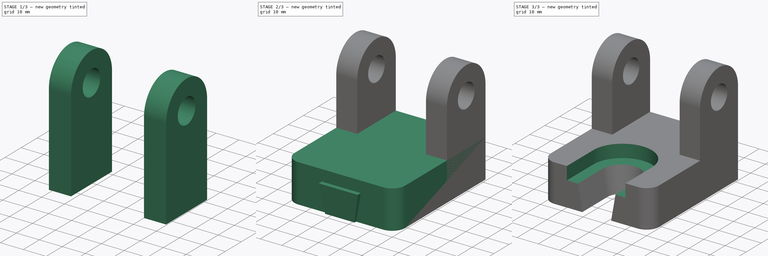
[diagram: build sequence overview — one tinted view per stage of 3, left to right]
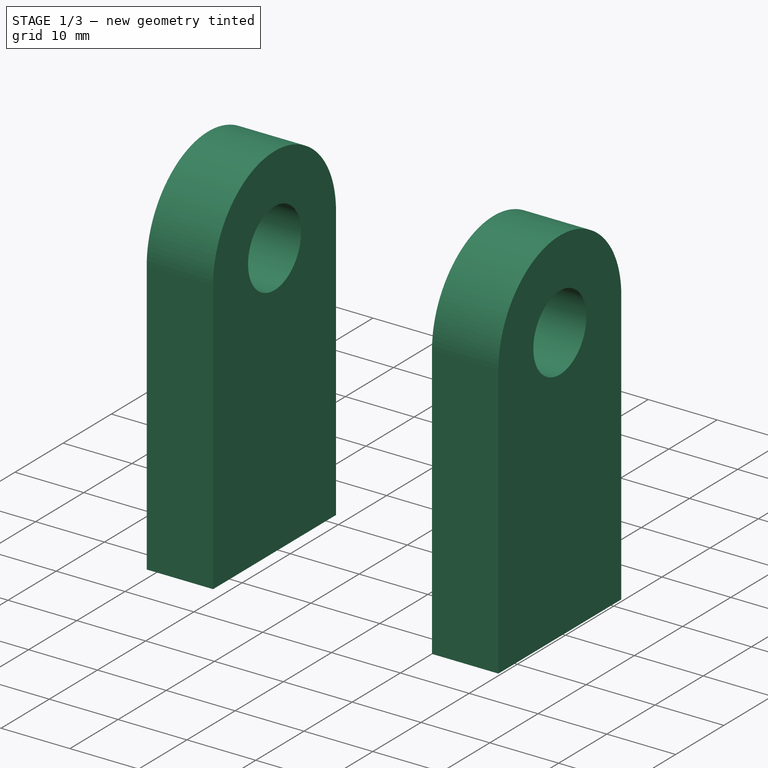
[diagram: stage 1 of 3 — iso view after this stage's code; geometry added in this stage tinted green]
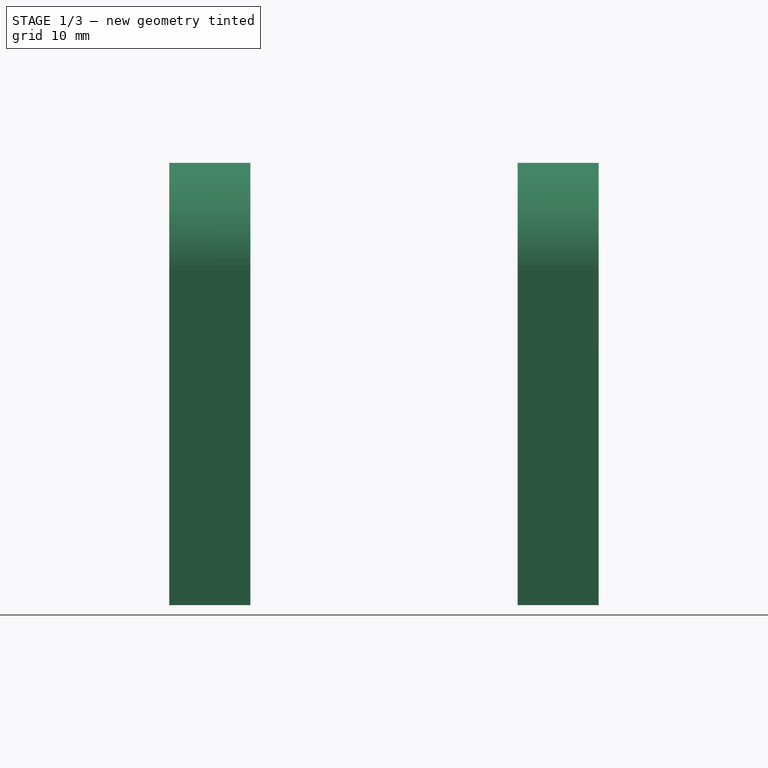
[diagram: stage 1 of 3 — front view after this stage's code; geometry added in this stage tinted green]
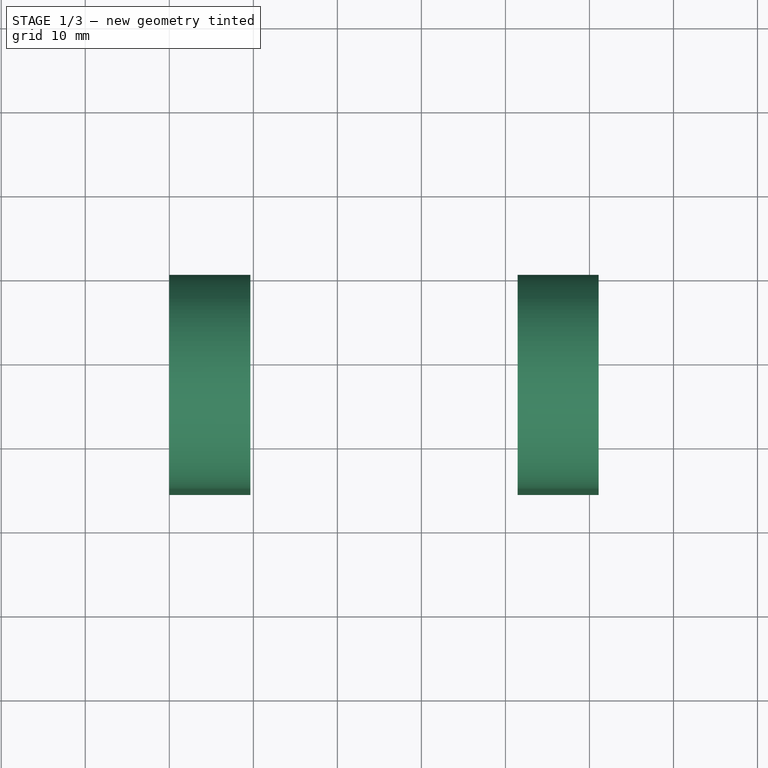
[diagram: stage 1 of 3 — top view after this stage's code; geometry added in this stage tinted green]
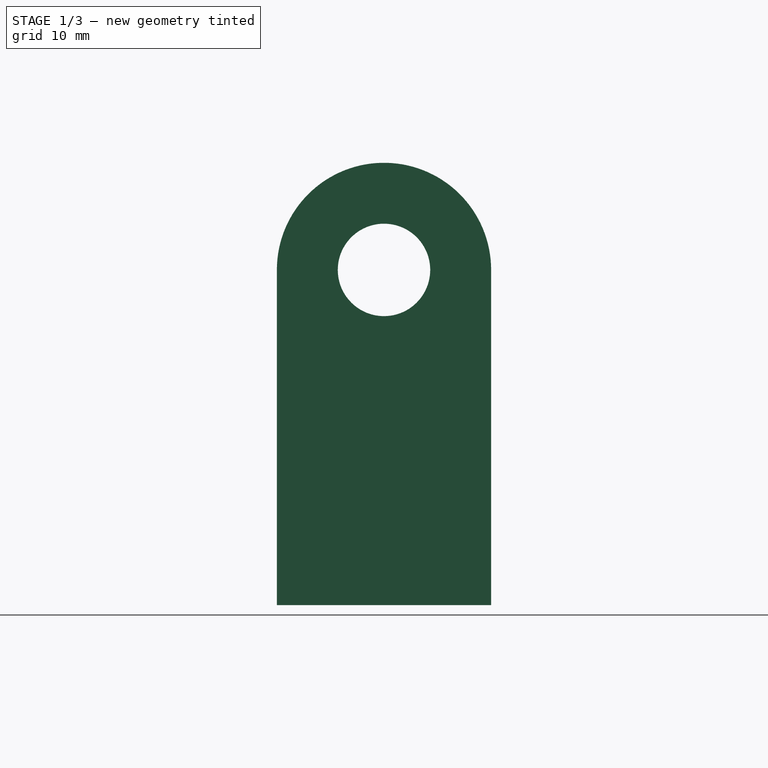
[diagram: stage 1 of 3 — right view after this stage's code; geometry added in this stage tinted green]
FCSTD DOCUMENT  (FreeCAD 0.16R6712 (Git))
Label: Pieza-4
License: All rights reserved
LicenseURL: http://en.wikipedia.org/wiki/All_rights_reserved
objects: Sketcher::SketchObject×6, PartDesign::Pad×3, Part::MultiFuse×2, PartDesign::Pocket×1, Part::Line×1, Part::Loft×1, Part::Cut×1
note: 19 computed .brp shape members not serialized (recipe doc carries the construction recipe); baked Part::Feature solids carry a one-line shape summary decoded from their .brp

FEATURE [Sketcher::SketchObject] Sketch004
  Placement = pos=(0,0,0) rot=(0.57735,0.57735,0.57735;2.0944rad)
  sketch-geometry (7):
    g0: LineSegment [constr] StartX=-25.5 StartY=39.9 StartZ=0 EndX=0 EndY=39.9 EndZ=0
    g1: LineSegment StartX=0 StartY=39.9 StartZ=0 EndX=0 EndY=0 EndZ=0
    g2: LineSegment StartX=0 StartY=0 StartZ=0 EndX=-25.5 EndY=0 EndZ=0
    g3: LineSegment StartX=-25.5 StartY=0 StartZ=0 EndX=-25.5 EndY=39.9 EndZ=0
    g4: ArcOfCircle CenterX=-12.75 CenterY=39.9 CenterZ=0 NormalX=0 NormalY=0 NormalZ=1 Radius=12.75 StartAngle=0 EndAngle=3.14159
    g5: LineSegment [constr] StartX=-12.75 StartY=39.9 StartZ=0 EndX=-12.75 EndY=52.65 EndZ=0
    g6: Circle CenterX=-12.75 CenterY=39.9 CenterZ=0 NormalX=0 NormalY=0 NormalZ=1 Radius=5.5
  constraints (21):
    c: Coincident(g0,g1)
    c: Coincident(g1,g2)
    c: Coincident(g2,g3)
    c: Horizontal(g0)
    c: Horizontal(g2)
    c: Vertical(g1)
    c: Vertical(g3)
    c: Coincident(g1,g-1)
    c: DistanceX(g2,g2) = 25.5
    c: Coincident(g4,g0)
    c: PointOnObject(g4,g0)
    c: Coincident(g4,g0)
    c: Coincident(g3,g0)
    c: Coincident(g0,g4)
    c: PointOnObject(g4,g0)
    c: Coincident(g5,g4)
    c: Vertical(g5)
    c: PointOnObject(g5,g4)
    c: DistanceY(g-1,g5) = 52.65
    c: Coincident(g6,g4)
    c: Radius(g6) = 5.5
FEATURE [Sketcher::SketchObject] Sketch005
  Placement = pos=(51.1,0,0) rot=(0.57735,0.57735,0.57735;2.0944rad)
  sketch-geometry (7):
    g0: LineSegment [constr] StartX=-25.5 StartY=39.9 StartZ=0 EndX=0 EndY=39.9 EndZ=0
    g1: LineSegment StartX=0 StartY=39.9 StartZ=0 EndX=0 EndY=0 EndZ=0
    g2: LineSegment StartX=0 StartY=0 StartZ=0 EndX=-25.5 EndY=0 EndZ=0
    g3: LineSegment StartX=-25.5 StartY=0 StartZ=0 EndX=-25.5 EndY=39.9 EndZ=0
    g4: ArcOfCircle CenterX=-12.75 CenterY=39.9 CenterZ=0 NormalX=0 NormalY=0 NormalZ=1 Radius=12.75 StartAngle=0 EndAngle=3.14159
    g5: LineSegment [constr] StartX=-12.75 StartY=39.9 StartZ=0 EndX=-12.75 EndY=52.65 EndZ=0
    g6: Circle CenterX=-12.75 CenterY=39.9 CenterZ=0 NormalX=0 NormalY=0 NormalZ=1 Radius=5.5
  constraints (21):
    c: Coincident(g0,g1)
    c: Coincident(g1,g2)
    c: Coincident(g2,g3)
    c: Horizontal(g0)
    c: Horizontal(g2)
    c: Vertical(g1)
    c: Vertical(g3)
    c: Coincident(g1,g-1)
    c: DistanceX(g2,g2) = 25.5
    c: Coincident(g4,g0)
    c: PointOnObject(g4,g0)
    c: Coincident(g4,g0)
    c: Coincident(g3,g0)
    c: Coincident(g0,g4)
    c: PointOnObject(g4,g0)
    c: Coincident(g5,g4)
    c: Vertical(g5)
    c: PointOnObject(g5,g4)
    c: DistanceY(g-1,g5) = 52.65
    c: Coincident(g6,g4)
    c: Radius(g6) = 5.5
FEATURE [PartDesign::Pad] Pad001  label="Oreja-iz"
  Length = 9.65
  Length2 = 100
  Placement = pos=(0,0,0) rot=(0.57735,0.57735,0.57735;2.0944rad)
  Sketch = -> Sketch004
  Type = 0
FEATURE [PartDesign::Pad] Pad002  label="Oreja-d"
  Length = 9.65
  Length2 = 100
  Placement = pos=(51.1,0,0) rot=(0.57735,0.57735,0.57735;2.0944rad)
  Reversed = true
  Sketch = -> Sketch005
  Type = 0
FEATURE [Part::MultiFuse] Fusion  label="Laterales"
  Shapes = -> [Pad002,Pad001]
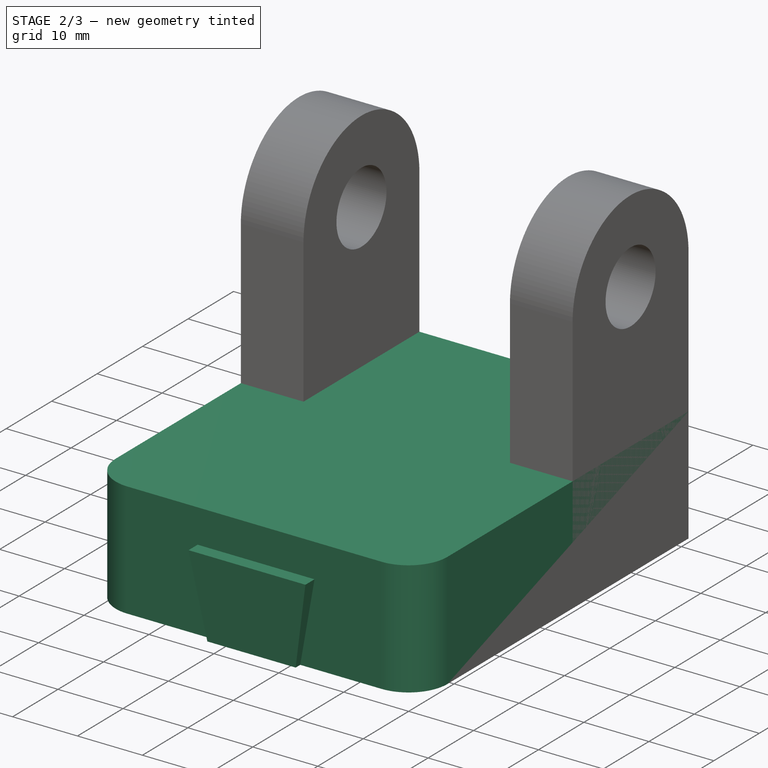
[diagram: stage 2 of 3 — iso view after this stage's code; geometry added in this stage tinted green]
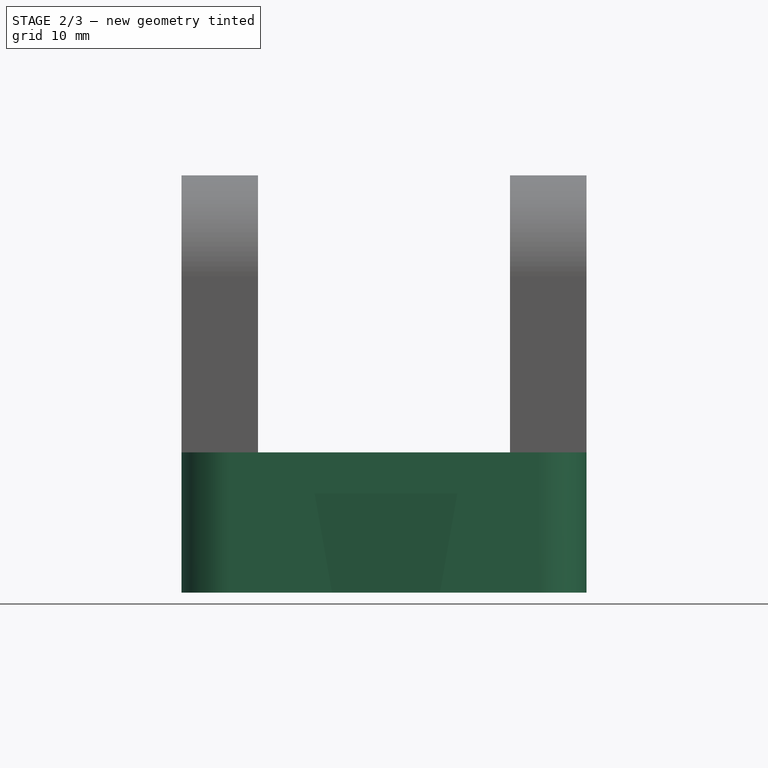
[diagram: stage 2 of 3 — front view after this stage's code; geometry added in this stage tinted green]
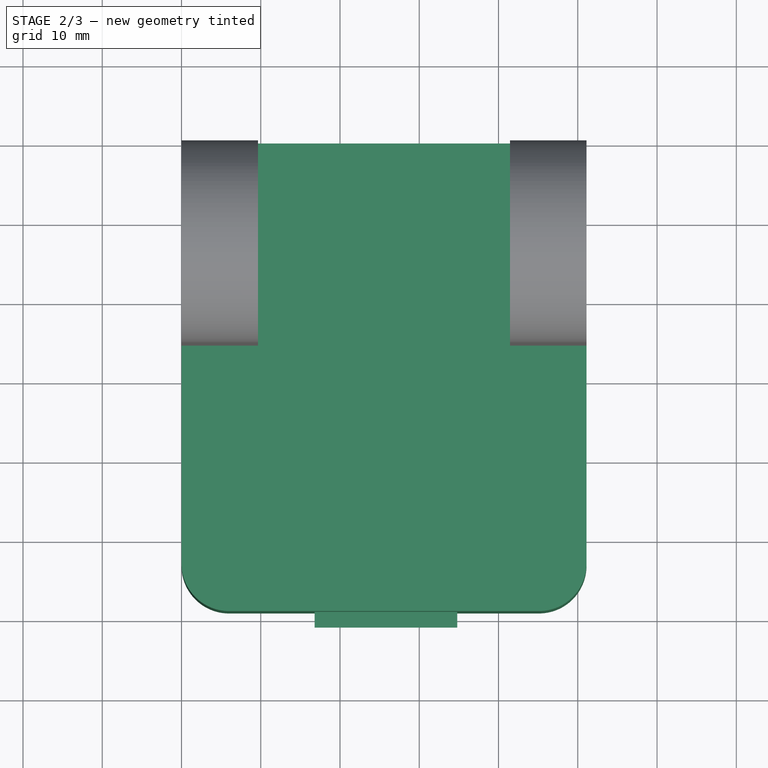
[diagram: stage 2 of 3 — top view after this stage's code; geometry added in this stage tinted green]
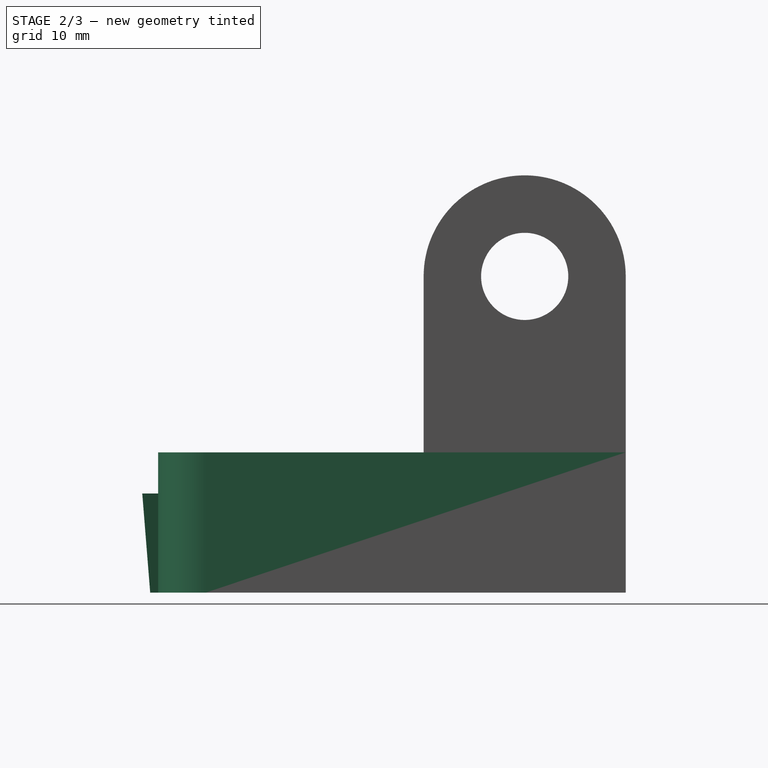
[diagram: stage 2 of 3 — right view after this stage's code; geometry added in this stage tinted green]
FEATURE [Sketcher::SketchObject] Sketch
  sketch-geometry (6):
    g0: LineSegment StartX=0 StartY=0 StartZ=0 EndX=51.1 EndY=0 EndZ=0
    g1: LineSegment StartX=51.1 StartY=0 StartZ=0 EndX=51.1 EndY=-53 EndZ=0
    g2: LineSegment StartX=0 StartY=-53 StartZ=0 EndX=0 EndY=0 EndZ=0
    g3: ArcOfCircle CenterX=6 CenterY=-53 CenterZ=0 NormalX=0 NormalY=0 NormalZ=1 Radius=6 StartAngle=3.14159 EndAngle=4.71239
    g4: ArcOfCircle CenterX=45.1 CenterY=-53 CenterZ=0 NormalX=0 NormalY=0 NormalZ=1 Radius=6 StartAngle=4.71239 EndAngle=6.28319
    g5: LineSegment StartX=45.1 StartY=-59 StartZ=0 EndX=6 EndY=-59 EndZ=0
  constraints (19):
    c: Coincident(g0,g-1)
    c: Coincident(g2,g3)
    c: Coincident(g3,g5)
    c: Vertical(g2)
    c: Equal(g3,g4)
    c: Horizontal(g5)
    c: DistanceY(g4,g0) = 59
    c: Coincident(g1,g4)
    c: Horizontal(g0)
    c: Coincident(g0,g2)
    c: Coincident(g0,g1)
    c: Radius(g4) = 6
    c: Equal(g1,g2)
    c: DistanceY(g4,g1) = 6
    c: Coincident(g5,g4)
    c: DistanceY(g3,g2) = 6
    c: DistanceX(g2,g1) = 51.1
    c: DistanceX(g4,g1) = 6
    c: DistanceX(g2,g3) = 6
FEATURE [PartDesign::Pad] Pad  label="Base-inicial"
  Length = 17.7
  Length2 = 100
  Sketch = -> Sketch
  Type = 0
FEATURE [Sketcher::SketchObject] Sketch002  label="Sketch-inferior"
  sketch-geometry (6):
    g0: LineSegment [constr] StartX=19 StartY=-42.2 StartZ=0 EndX=32.6 EndY=-42.2 EndZ=0
    g1: LineSegment StartX=32.6 StartY=-42.2 StartZ=0 EndX=32.6 EndY=-60 EndZ=0
    g2: LineSegment StartX=32.6 StartY=-60 StartZ=0 EndX=19 EndY=-60 EndZ=0
    g3: LineSegment StartX=19 StartY=-60 StartZ=0 EndX=19 EndY=-42.2 EndZ=0
    g4: ArcOfCircle CenterX=25.8 CenterY=-42.2 CenterZ=0 NormalX=0 NormalY=0 NormalZ=1 Radius=6.8 StartAngle=6.28318 EndAngle=9.42478
    g5: LineSegment [constr] StartX=25.8 StartY=-42.2 StartZ=0 EndX=25.8 EndY=-35.4 EndZ=0
  constraints (18):
    c: Coincident(g0,g1)
    c: Coincident(g1,g2)
    c: Coincident(g2,g3)
    c: Horizontal(g0)
    c: Horizontal(g2)
    c: Vertical(g1)
    c: Vertical(g3)
    c: DistanceX(g0,g0) = 13.6
    c: Coincident(g4,g0)
    c: Coincident(g4,g0)
    c: Coincident(g3,g0)
    c: Radius(g4) = 6.8
    c: Coincident(g5,g4)
    c: Vertical(g5)
    c: PointOnObject(g5,g4)
    c: DistanceY(g1,g5) = 24.6
    c: DistanceY(g2,g-1) = 60
    c: DistanceX(g-1,g4) = 25.8
FEATURE [Sketcher::SketchObject] Sketch003  label="Sketch-superior"
  Placement = pos=(0,0,12.5) rot=(0,0,1;0rad)
  sketch-geometry (6):
    g0: LineSegment [constr] StartX=16.8 StartY=-42.4 StartZ=0 EndX=34.8 EndY=-42.4 EndZ=0
    g1: LineSegment StartX=34.8 StartY=-42.4 StartZ=0 EndX=34.8 EndY=-61 EndZ=0
    g2: LineSegment StartX=34.8 StartY=-61 StartZ=0 EndX=16.8 EndY=-61 EndZ=0
    g3: LineSegment StartX=16.8 StartY=-61 StartZ=0 EndX=16.8 EndY=-42.4 EndZ=0
    g4: ArcOfCircle CenterX=25.8 CenterY=-42.4 CenterZ=0 NormalX=0 NormalY=0 NormalZ=1 Radius=9 StartAngle=0 EndAngle=3.14159
    g5: LineSegment [constr] StartX=25.8 StartY=-42.4 StartZ=0 EndX=25.8 EndY=-33.4 EndZ=0
  constraints (20):
    c: Coincident(g0,g1)
    c: Coincident(g1,g2)
    c: Coincident(g2,g3)
    c: Horizontal(g0)
    c: Horizontal(g2)
    c: Vertical(g1)
    c: Vertical(g3)
    c: Coincident(g4,g0)
    c: PointOnObject(g4,g0)
    c: DistanceX(g0,g0) = 18
    c: Coincident(g4,g0)
    c: Coincident(g4,g0)
    c: Coincident(g3,g0)
    c: Vertical(g5)
    c: PointOnObject(g5,g4)
    c: DistanceY(g1,g5) = 27.6
    c: DistanceY(g2,g-1) = 61
    c: PointOnObject(g4,g0)
    c: Coincident(g4,g5)
    c: DistanceX(g-1,g4) = 25.8
FEATURE [Part::Line] Line  label="Línea"
  Placement = pos=(0,0,-0.2) rot=(0,0,1;0rad)
  X1 = 25.8
  X2 = 25.8
  Y1 = -37.2
  Y2 = -37.2
  Z1 = 0
  Z2 = 12
FEATURE [Part::Loft] Loft  label="Hueco-inclinado"
  Closed = false
  Ruled = true
  Sections = -> [Sketch002,Sketch003]
  Solid = true
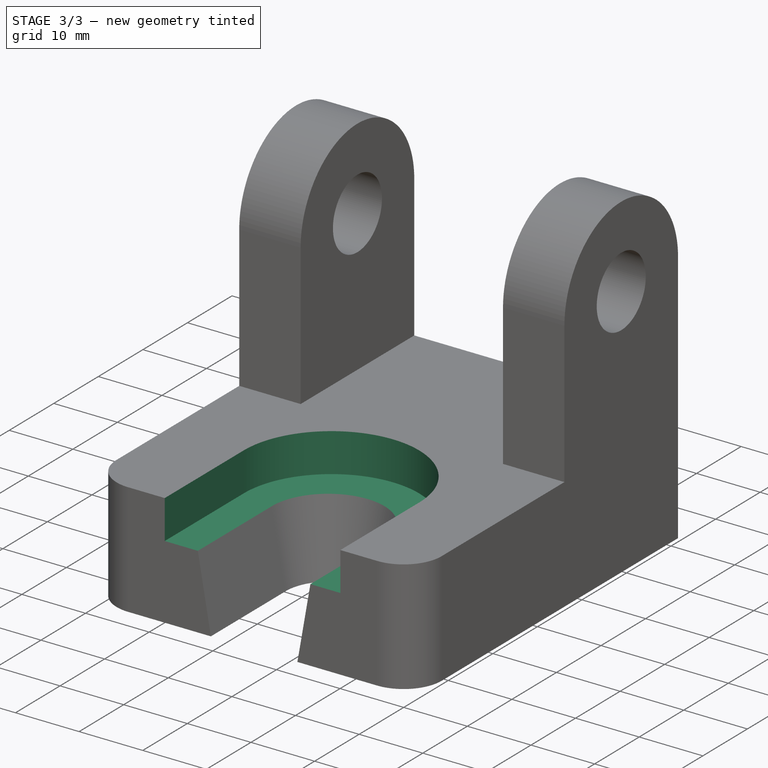
[diagram: stage 3 of 3 — iso view after this stage's code; geometry added in this stage tinted green]
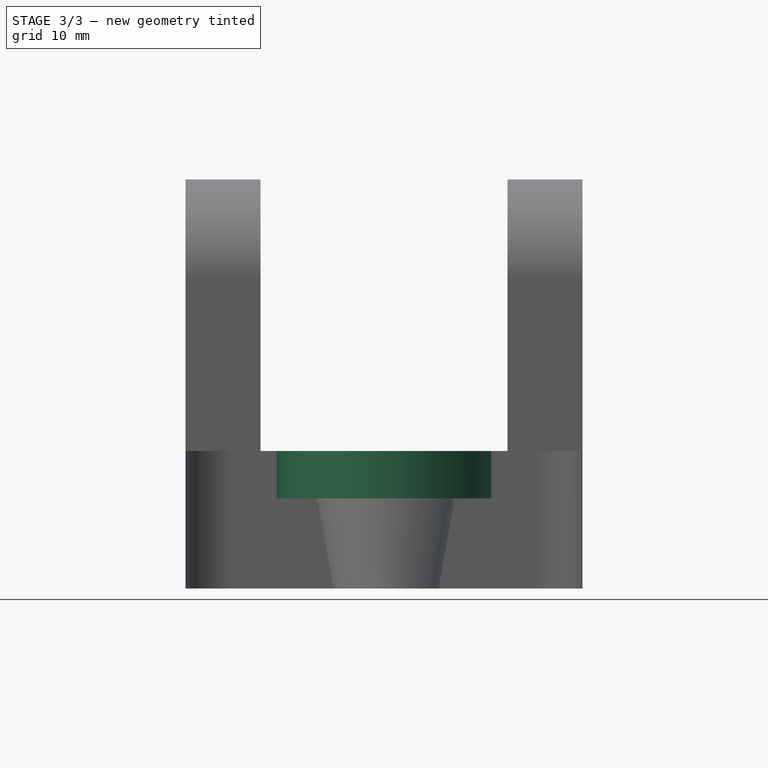
[diagram: stage 3 of 3 — front view after this stage's code; geometry added in this stage tinted green]
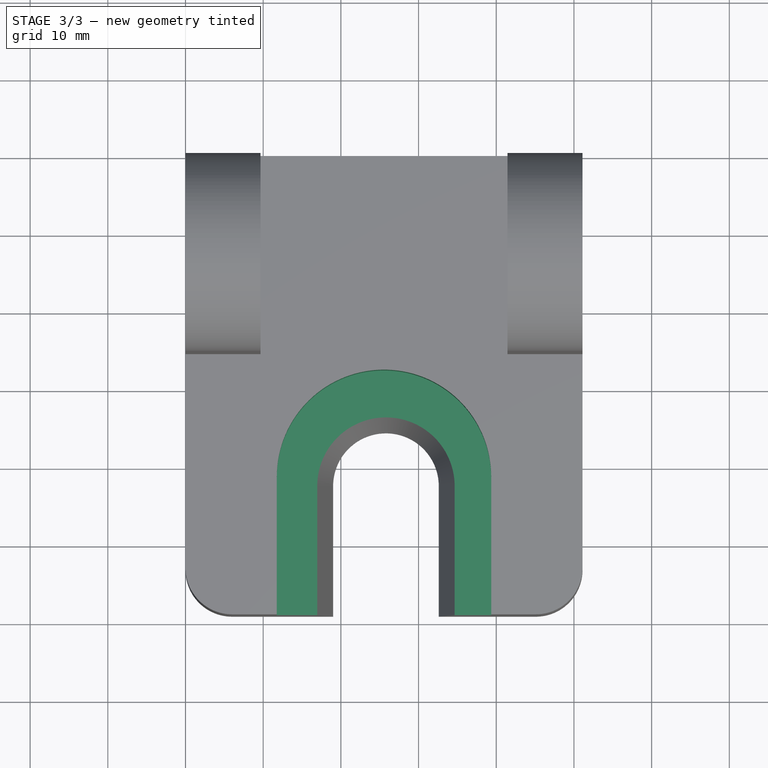
[diagram: stage 3 of 3 — top view after this stage's code; geometry added in this stage tinted green]
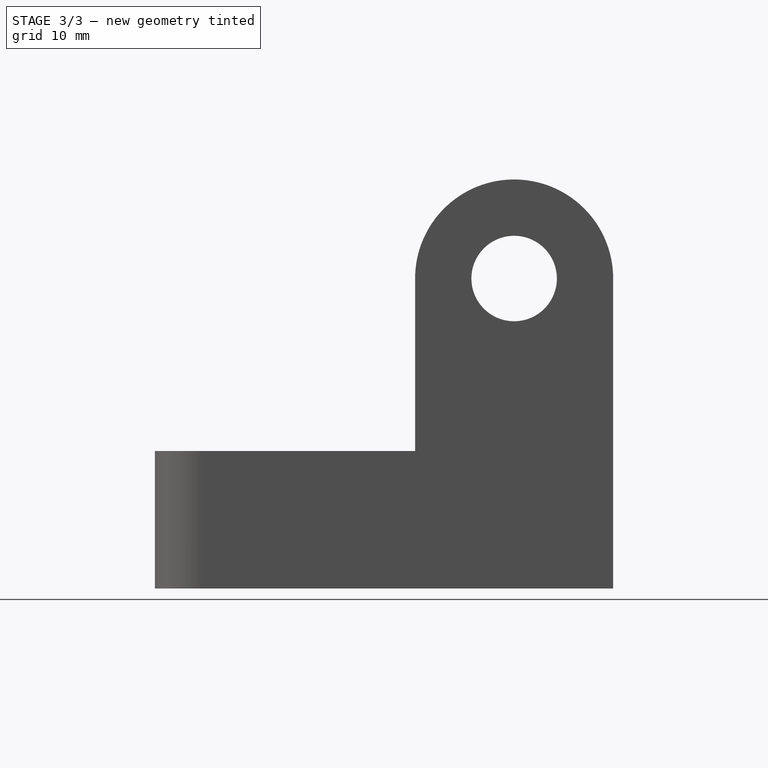
[diagram: stage 3 of 3 — right view after this stage's code; geometry added in this stage tinted green]
FEATURE [Sketcher::SketchObject] Sketch001
  Placement = pos=(0,0,17.7) rot=(0,0,1;0rad)
  Support = -> Pad [Face8]
  sketch-geometry (6):
    g0: LineSegment [constr] StartX=39.35 StartY=-41.3 StartZ=0 EndX=11.75 EndY=-41.3 EndZ=0
    g1: LineSegment StartX=39.35 StartY=-41.3 StartZ=0 EndX=39.35 EndY=-59 EndZ=0
    g2: LineSegment StartX=11.75 StartY=-59 StartZ=0 EndX=11.75 EndY=-41.3 EndZ=0
    g3: ArcOfCircle CenterX=25.55 CenterY=-41.3 CenterZ=0 NormalX=0 NormalY=0 NormalZ=1 Radius=13.8 StartAngle=0 EndAngle=3.14159
    g4: LineSegment [constr] StartX=25.55 StartY=-41.3 StartZ=0 EndX=25.55 EndY=-27.5 EndZ=0
    g5: LineSegment StartX=11.75 StartY=-59 StartZ=0 EndX=39.35 EndY=-59 EndZ=0
  constraints (18):
    c: Horizontal(g0)
    c: Vertical(g1)
    c: Vertical(g2)
    c: Equal(g1,g2)
    c: PointOnObject(g3,g0)
    c: DistanceX(g2,g1) = 27.6
    c: Coincident(g3,g0)
    c: Coincident(g3,g0)
    c: Coincident(g0,g2)
    c: Coincident(g0,g1)
    c: Coincident(g4,g3)
    c: Vertical(g4)
    c: PointOnObject(g4,g3)
    c: DistanceY(g2,g4) = 31.5
    c: DistanceX(g-1,g2) = 11.75
    c: Coincident(g5,g2)
    c: Coincident(g5,g1)
    c: DistanceY(g2,g-1) = 59
FEATURE [PartDesign::Pocket] Pocket  label="Base-rebaje"
  Length = 6.1
  Sketch = -> Sketch001
  Type = 0
FEATURE [Part::Cut] Cut  label="Base"
  Base = -> Pocket
  Tool = -> Loft
FEATURE [Part::MultiFuse] Fusion001  label="Hueco-inclinado001"
  Shapes = -> [Fusion,Cut]
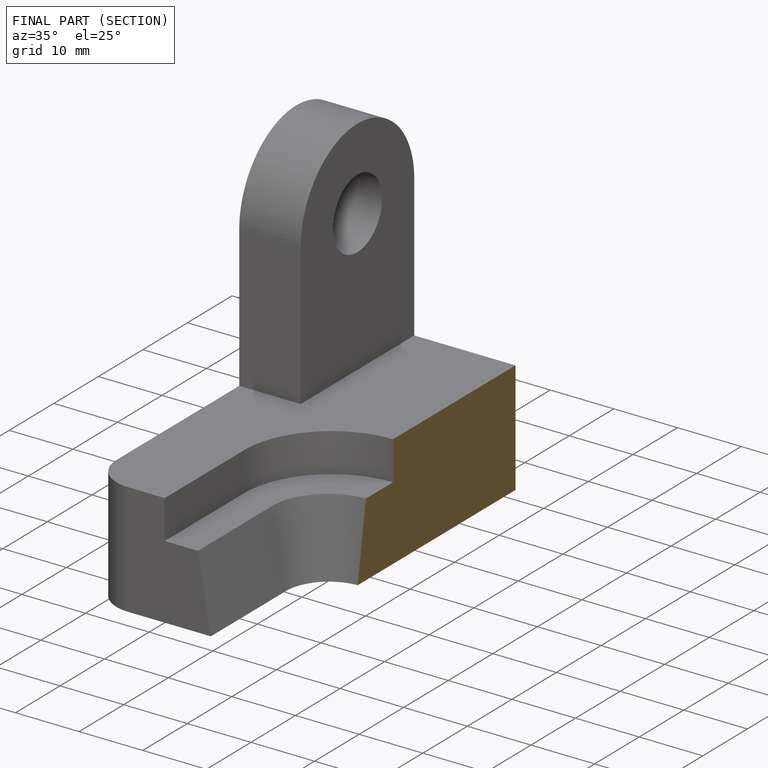
[diagram: finished part — half-section view (interior)]
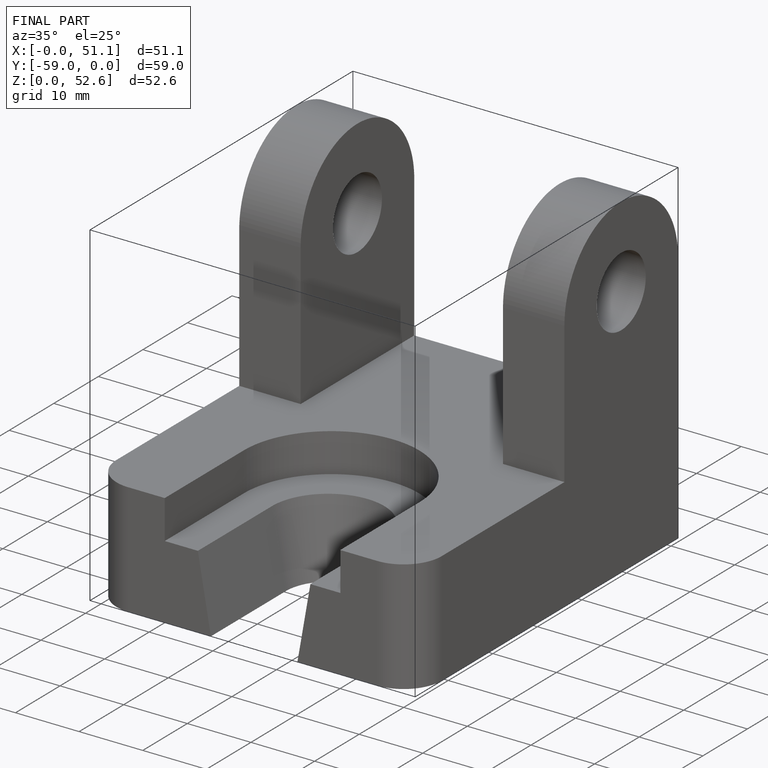
[diagram: finished part — iso view with bounding-box wireframe]
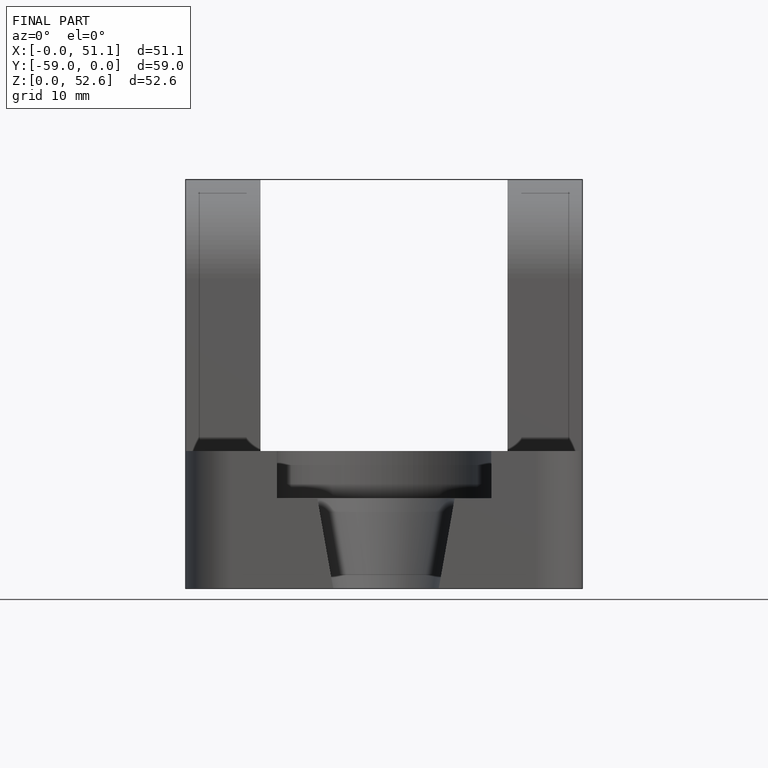
[diagram: finished part — front view with bounding-box wireframe]
